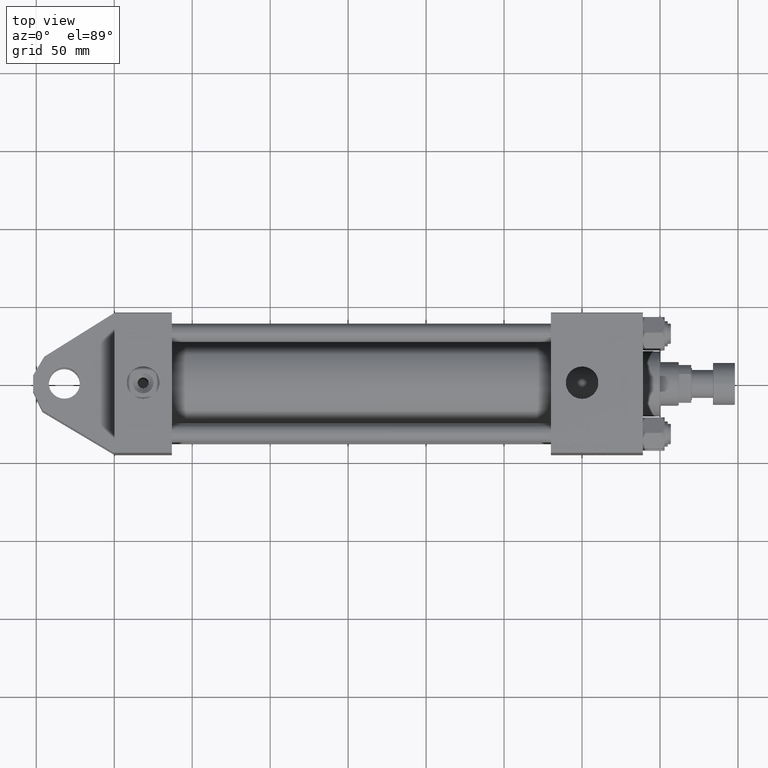
[diagram: clean part render]
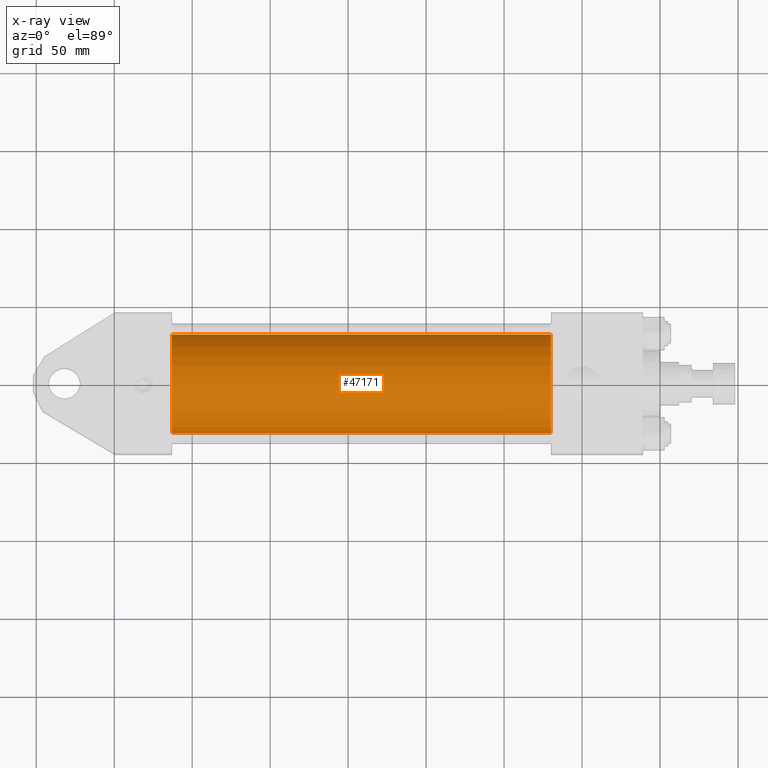
[diagram: x-ray — body ghosted, one internal face saturated and labeled with its STEP entity id]
A machine part, top view, then the same camera in x-ray: the body is ghosted and one INTERNAL B-rep face — a face not visible from any outside direction — is saturated and labeled: STEP entity #47171.
In plain terms, the highlighted cylindrical surface (partial cylindrical patch) has radius 31.5 mm, axis along (-1, -0, 0).
Its self-contained STEP definition (entity closure, byte-faithful):
#154 = ORIENTED_EDGE ( 'NONE', *, *, #28533, .T. ) ;
#1372 = CARTESIAN_POINT ( 'NONE',  ( 37.00000000000000000, 3.881904653605483521E-16, -31.50000000000000000 ) ) ;
#3337 = DIRECTION ( 'NONE',  ( -1.000000000000000000, -0.000000000000000000, -0.000000000000000000 ) ) ;
#6192 = CARTESIAN_POINT ( 'NONE',  ( 279.9999999999999432, 3.881904653605483521E-16, -31.50000000000000000 ) ) ;
#6628 = DIRECTION ( 'NONE',  ( 0.000000000000000000, 0.000000000000000000, -1.000000000000000000 ) ) ;
#7353 = AXIS2_PLACEMENT_3D ( 'NONE', #14532, #42826, #34646 ) ;
#9995 = ORIENTED_EDGE ( 'NONE', *, *, #29389, .F. ) ;
#10768 = CIRCLE ( 'NONE', #7353, 31.50000000000000000 ) ;
#12549 = CARTESIAN_POINT ( 'NONE',  ( 279.9999999999999432, -3.469446951953614189E-15, 31.50000000000000000 ) ) ;
#14532 = CARTESIAN_POINT ( 'NONE',  ( 279.9999999999999432, -3.469446951953614189E-15, 0.000000000000000000 ) ) ;
#15207 = LINE ( 'NONE', #18394, #50381 ) ;
#18085 = ORIENTED_EDGE ( 'NONE', *, *, #44680, .F. ) ;
#18394 = CARTESIAN_POINT ( 'NONE',  ( 279.9999999999999432, 3.881904653605483521E-16, -31.50000000000000000 ) ) ;
#19237 = FACE_OUTER_BOUND ( 'NONE', #21157, .T. ) ;
#21157 = EDGE_LOOP ( 'NONE', ( #154, #39608, #18085, #9995 ) ) ;
#23021 = DIRECTION ( 'NONE',  ( 1.000000000000000000, 0.000000000000000000, 0.000000000000000000 ) ) ;
#23286 = AXIS2_PLACEMENT_3D ( 'NONE', #39829, #3337, #51179 ) ;
#23458 = VECTOR ( 'NONE', #49208, 1000.000000000000000 ) ;
#24665 = VERTEX_POINT ( 'NONE', #1372 ) ;
#25571 = CIRCLE ( 'NONE', #45789, 31.50000000000000000 ) ;
#27683 = CYLINDRICAL_SURFACE ( 'NONE', #23286, 31.50000000000000000 ) ;
#28533 = EDGE_CURVE ( 'NONE', #45352, #39098, #10768, .T. ) ;
#29389 = EDGE_CURVE ( 'NONE', #45352, #30565, #29681, .T. ) ;
#29681 = LINE ( 'NONE', #33131, #23458 ) ;
#30565 = VERTEX_POINT ( 'NONE', #41706 ) ;
#33131 = CARTESIAN_POINT ( 'NONE',  ( 279.9999999999999432, -3.469446951953614189E-15, 31.50000000000000000 ) ) ;
#34646 = DIRECTION ( 'NONE',  ( 0.000000000000000000, 0.000000000000000000, -1.000000000000000000 ) ) ;
#38370 = CARTESIAN_POINT ( 'NONE',  ( 37.00000000000000000, -3.469446951953614189E-15, 0.000000000000000000 ) ) ;
#39098 = VERTEX_POINT ( 'NONE', #6192 ) ;
#39608 = ORIENTED_EDGE ( 'NONE', *, *, #50720, .T. ) ;
#39829 = CARTESIAN_POINT ( 'NONE',  ( 279.9999999999999432, -3.469446951953614189E-15, 0.000000000000000000 ) ) ;
#41706 = CARTESIAN_POINT ( 'NONE',  ( 37.00000000000000000, -3.469446951953614189E-15, 31.50000000000000000 ) ) ;
#42826 = DIRECTION ( 'NONE',  ( 1.000000000000000000, 0.000000000000000000, 0.000000000000000000 ) ) ;
#44680 = EDGE_CURVE ( 'NONE', #30565, #24665, #25571, .T. ) ;
#45352 = VERTEX_POINT ( 'NONE', #12549 ) ;
#45789 = AXIS2_PLACEMENT_3D ( 'NONE', #38370, #23021, #6628 ) ;
#47171 = ADVANCED_FACE ( 'NONE', ( #19237 ), #27683, .F. ) ;
#49208 = DIRECTION ( 'NONE',  ( -1.000000000000000000, -0.000000000000000000, -0.000000000000000000 ) ) ;
#50381 = VECTOR ( 'NONE', #50867, 1000.000000000000000 ) ;
#50720 = EDGE_CURVE ( 'NONE', #39098, #24665, #15207, .T. ) ;
#50867 = DIRECTION ( 'NONE',  ( -1.000000000000000000, -0.000000000000000000, -0.000000000000000000 ) ) ;
#51179 = DIRECTION ( 'NONE',  ( 0.000000000000000000, 0.000000000000000000, 1.000000000000000000 ) ) ;